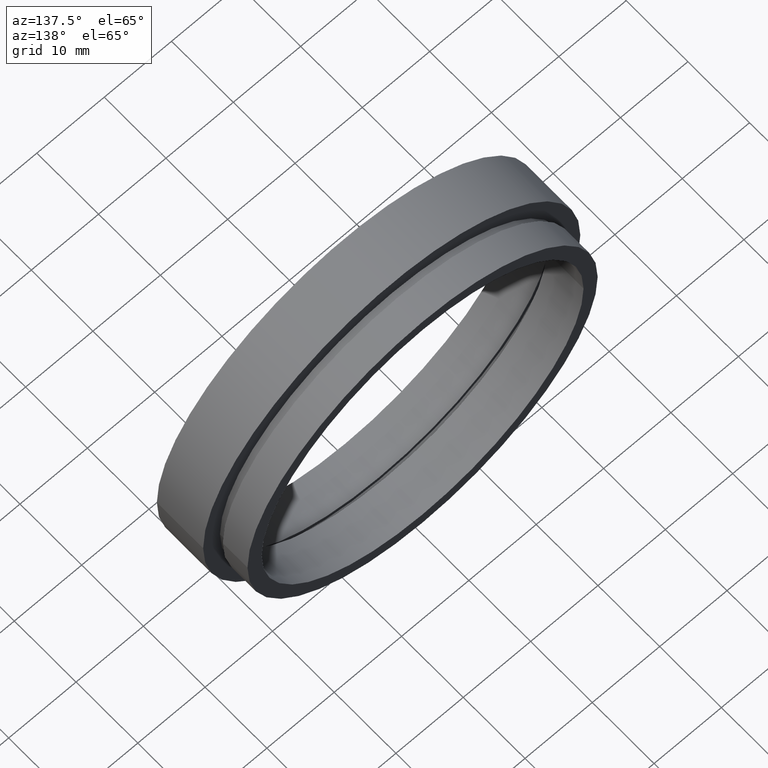
[diagram: clean part render]
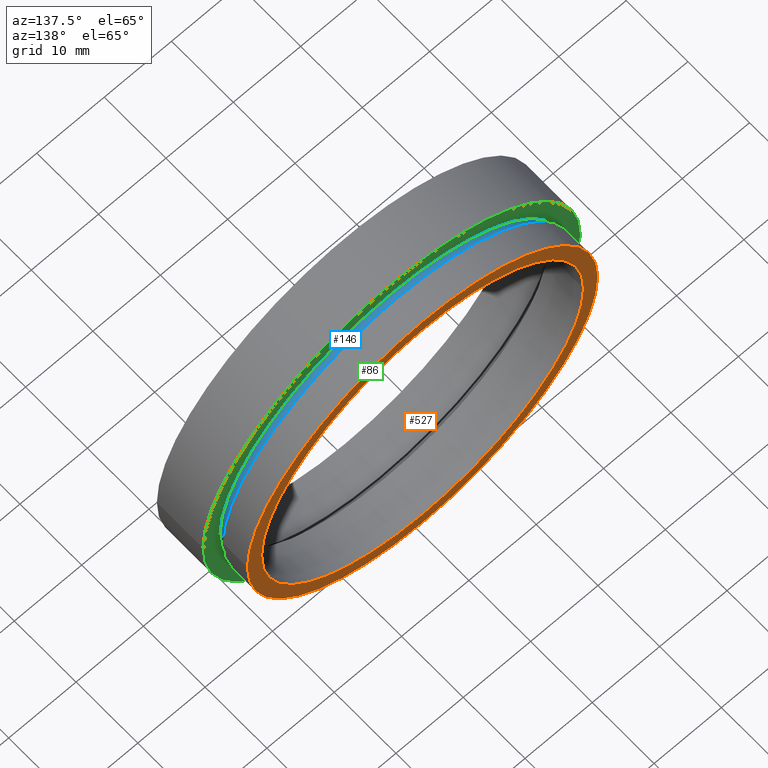
[diagram: same view with three faces highlighted in distinct colors, each labeled with its STEP entity id]
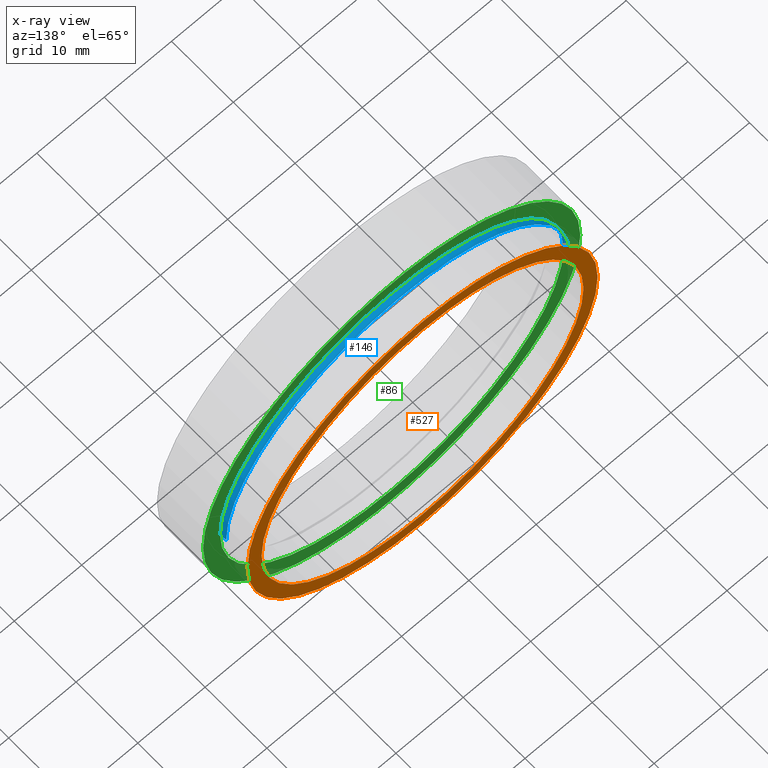
[diagram: x-ray of the same camera — body ghosted, the three highlighted faces saturated]
A machine part, auxiliary view with three faces highlighted in distinct colors.
The next image is the same camera in x-ray (body ghosted, the three faces saturated) — at least one of them is partly hidden behind the body in this view.
Their STEP definitions:

[orange] entity #527 — the highlighted planar face has unit normal (0, -1, 0).
#6 = VERTEX_POINT ( 'NONE', #528 ) ;
#14 = CARTESIAN_POINT ( 'NONE',  ( 5.371323195044473300E-016, 12.49999999999999600, 0.0000000000000000000 ) ) ;
#70 = DIRECTION ( 'NONE',  ( -1.224646799147351000E-016, 1.000000000000000000, -0.0000000000000000000 ) ) ;
#79 = CARTESIAN_POINT ( 'NONE',  ( 5.371323195044477300E-016, 12.49999999999999500, 0.0000000000000000000 ) ) ;
#99 = CARTESIAN_POINT ( 'NONE',  ( 23.89999999999999900, 12.50000000000000000, 2.926905849962173700E-015 ) ) ;
#123 = CARTESIAN_POINT ( 'NONE',  ( 5.371323195044477300E-016, 12.49999999999999500, 0.0000000000000000000 ) ) ;
#139 = AXIS2_PLACEMENT_3D ( 'NONE', #14, #582, #409 ) ;
#150 = CIRCLE ( 'NONE', #254, 26.00000000000000000 ) ;
#173 = DIRECTION ( 'NONE',  ( 1.000000000000000000, 1.224646799147351000E-016, 0.0000000000000000000 ) ) ;
#180 = DIRECTION ( 'NONE',  ( -1.000000000000000000, -1.451651444332056200E-016, 0.0000000000000000000 ) ) ;
#213 = CIRCLE ( 'NONE', #139, 23.89999999999999900 ) ;
#224 = ORIENTED_EDGE ( 'NONE', *, *, #575, .F. ) ;
#233 = CARTESIAN_POINT ( 'NONE',  ( 5.371323195044473300E-016, 12.49999999999999600, 0.0000000000000000000 ) ) ;
#236 = DIRECTION ( 'NONE',  ( -1.224646799147351000E-016, 1.000000000000000000, -0.0000000000000000000 ) ) ;
#241 = EDGE_LOOP ( 'NONE', ( #464, #401 ) ) ;
#254 = AXIS2_PLACEMENT_3D ( 'NONE', #123, #70, #467 ) ;
#263 = ORIENTED_EDGE ( 'NONE', *, *, #402, .F. ) ;
#299 = EDGE_CURVE ( 'NONE', #344, #579, #316, .T. ) ;
#311 = AXIS2_PLACEMENT_3D ( 'NONE', #233, #236, #180 ) ;
#316 = CIRCLE ( 'NONE', #516, 26.00000000000000000 ) ;
#328 = EDGE_LOOP ( 'NONE', ( #263, #224 ) ) ;
#331 = PLANE ( 'NONE',  #396 ) ;
#333 = CARTESIAN_POINT ( 'NONE',  ( 26.00000000000000400, 12.49999999999999800, 3.184081677783118600E-015 ) ) ;
#344 = VERTEX_POINT ( 'NONE', #521 ) ;
#396 = AXIS2_PLACEMENT_3D ( 'NONE', #593, #465, #173 ) ;
#398 = VERTEX_POINT ( 'NONE', #99 ) ;
#401 = ORIENTED_EDGE ( 'NONE', *, *, #520, .T. ) ;
#402 = EDGE_CURVE ( 'NONE', #6, #398, #213, .T. ) ;
#404 = FACE_BOUND ( 'NONE', #328, .T. ) ;
#409 = DIRECTION ( 'NONE',  ( -1.000000000000000000, -1.451651444332056200E-016, 0.0000000000000000000 ) ) ;
#452 = FACE_OUTER_BOUND ( 'NONE', #241, .T. ) ;
#464 = ORIENTED_EDGE ( 'NONE', *, *, #299, .T. ) ;
#465 = DIRECTION ( 'NONE',  ( 1.224646799147351000E-016, -1.000000000000000000, 0.0000000000000000000 ) ) ;
#467 = DIRECTION ( 'NONE',  ( -1.000000000000000000, -1.334402673828313100E-016, 0.0000000000000000000 ) ) ;
#475 = DIRECTION ( 'NONE',  ( -1.000000000000000000, -1.334402673828313100E-016, 0.0000000000000000000 ) ) ;
#508 = CIRCLE ( 'NONE', #311, 23.89999999999999900 ) ;
#516 = AXIS2_PLACEMENT_3D ( 'NONE', #79, #564, #475 ) ;
#520 = EDGE_CURVE ( 'NONE', #579, #344, #150, .T. ) ;
#521 = CARTESIAN_POINT ( 'NONE',  ( -26.00000000000000000, 12.49999999999999300, 0.0000000000000000000 ) ) ;
#527 = ADVANCED_FACE ( 'NONE', ( #404, #452 ), #331, .F. ) ;
#528 = CARTESIAN_POINT ( 'NONE',  ( -23.89999999999999900, 12.49999999999999300, 0.0000000000000000000 ) ) ;
#564 = DIRECTION ( 'NONE',  ( -1.224646799147351000E-016, 1.000000000000000000, -0.0000000000000000000 ) ) ;
#575 = EDGE_CURVE ( 'NONE', #398, #6, #508, .T. ) ;
#579 = VERTEX_POINT ( 'NONE', #333 ) ;
#582 = DIRECTION ( 'NONE',  ( -1.224646799147351000E-016, 1.000000000000000000, -0.0000000000000000000 ) ) ;
#593 = CARTESIAN_POINT ( 'NONE',  ( 23.89999999999999900, 12.50000000000000000, 0.0000000000000000000 ) ) ;

[blue] entity #146 — the highlighted cylindrical surface (partial cylindrical patch) has radius 25.5 mm, axis along (-0, 1, -0).
#27 = EDGE_LOOP ( 'NONE', ( #352, #171, #511, #294 ) ) ;
#55 = EDGE_CURVE ( 'NONE', #67, #240, #197, .T. ) ;
#65 = CIRCLE ( 'NONE', #244, 25.50000000000000400 ) ;
#67 = VERTEX_POINT ( 'NONE', #576 ) ;
#74 = DIRECTION ( 'NONE',  ( -1.224646799147351000E-016, 1.000000000000000000, -0.0000000000000000000 ) ) ;
#80 = LINE ( 'NONE', #498, #238 ) ;
#106 = VERTEX_POINT ( 'NONE', #495 ) ;
#119 = EDGE_CURVE ( 'NONE', #319, #106, #65, .T. ) ;
#146 = ADVANCED_FACE ( 'NONE', ( #351 ), #273, .T. ) ;
#147 = EDGE_CURVE ( 'NONE', #106, #240, #358, .T. ) ;
#159 = DIRECTION ( 'NONE',  ( -1.000000000000000000, -1.360567432138672100E-016, 0.0000000000000000000 ) ) ;
#168 = AXIS2_PLACEMENT_3D ( 'NONE', #505, #591, #496 ) ;
#171 = ORIENTED_EDGE ( 'NONE', *, *, #147, .T. ) ;
#197 = CIRCLE ( 'NONE', #210, 25.50000000000000400 ) ;
#202 = DIRECTION ( 'NONE',  ( -1.224646799147351000E-016, 1.000000000000000000, -0.0000000000000000000 ) ) ;
#210 = AXIS2_PLACEMENT_3D ( 'NONE', #536, #202, #159 ) ;
#238 = VECTOR ( 'NONE', #74, 1000.000000000000000 ) ;
#240 = VERTEX_POINT ( 'NONE', #608 ) ;
#244 = AXIS2_PLACEMENT_3D ( 'NONE', #327, #600, #330 ) ;
#273 = CYLINDRICAL_SURFACE ( 'NONE', #168, 25.50000000000000400 ) ;
#294 = ORIENTED_EDGE ( 'NONE', *, *, #493, .F. ) ;
#319 = VERTEX_POINT ( 'NONE', #567 ) ;
#320 = DIRECTION ( 'NONE',  ( -1.224646799147351000E-016, 1.000000000000000000, -0.0000000000000000000 ) ) ;
#327 = CARTESIAN_POINT ( 'NONE',  ( 1.149455719078123100E-015, 7.499999999999996400, 0.0000000000000000000 ) ) ;
#330 = DIRECTION ( 'NONE',  ( -1.000000000000000000, -1.360567432138672100E-016, 0.0000000000000000000 ) ) ;
#351 = FACE_OUTER_BOUND ( 'NONE', #27, .T. ) ;
#352 = ORIENTED_EDGE ( 'NONE', *, *, #119, .T. ) ;
#358 = LINE ( 'NONE', #555, #578 ) ;
#493 = EDGE_CURVE ( 'NONE', #319, #67, #80, .T. ) ;
#495 = CARTESIAN_POINT ( 'NONE',  ( 25.50000000000000400, 7.500000000000000000, 3.122849337825751000E-015 ) ) ;
#496 = DIRECTION ( 'NONE',  ( -1.000000000000000000, -1.360567432138672100E-016, 0.0000000000000000000 ) ) ;
#498 = CARTESIAN_POINT ( 'NONE',  ( -25.50000000000000400, 16.88601823708207300, 0.0000000000000000000 ) ) ;
#505 = CARTESIAN_POINT ( 'NONE',  ( 0.0000000000000000000, 16.88601823708207700, 0.0000000000000000000 ) ) ;
#511 = ORIENTED_EDGE ( 'NONE', *, *, #55, .F. ) ;
#536 = CARTESIAN_POINT ( 'NONE',  ( 1.026991039163387900E-015, 8.499999999999996400, 0.0000000000000000000 ) ) ;
#555 = CARTESIAN_POINT ( 'NONE',  ( 25.50000000000000400, 16.88601823708208000, 3.122849337825751000E-015 ) ) ;
#567 = CARTESIAN_POINT ( 'NONE',  ( -25.50000000000000400, 7.499999999999992900, 0.0000000000000000000 ) ) ;
#576 = CARTESIAN_POINT ( 'NONE',  ( -25.50000000000000400, 8.499999999999992900, 0.0000000000000000000 ) ) ;
#578 = VECTOR ( 'NONE', #320, 1000.000000000000000 ) ;
#591 = DIRECTION ( 'NONE',  ( -1.224646799147351000E-016, 1.000000000000000000, -0.0000000000000000000 ) ) ;
#600 = DIRECTION ( 'NONE',  ( -1.224646799147351000E-016, 1.000000000000000000, -0.0000000000000000000 ) ) ;
#608 = CARTESIAN_POINT ( 'NONE',  ( 25.50000000000000400, 8.500000000000000000, 3.122849337825751000E-015 ) ) ;

[green] entity #86 — the highlighted planar face has unit normal (0, -1, 0).
#7 = ORIENTED_EDGE ( 'NONE', *, *, #23, .T. ) ;
#11 = AXIS2_PLACEMENT_3D ( 'NONE', #438, #481, #450 ) ;
#23 = EDGE_CURVE ( 'NONE', #128, #143, #88, .T. ) ;
#29 = ORIENTED_EDGE ( 'NONE', *, *, #119, .F. ) ;
#36 = CARTESIAN_POINT ( 'NONE',  ( 1.149455719078123100E-015, 7.499999999999996400, 0.0000000000000000000 ) ) ;
#48 = AXIS2_PLACEMENT_3D ( 'NONE', #36, #281, #563 ) ;
#65 = CIRCLE ( 'NONE', #244, 25.50000000000000400 ) ;
#86 = ADVANCED_FACE ( 'NONE', ( #455, #379 ), #580, .F. ) ;
#88 = CIRCLE ( 'NONE', #614, 28.00000000000000000 ) ;
#106 = VERTEX_POINT ( 'NONE', #495 ) ;
#119 = EDGE_CURVE ( 'NONE', #319, #106, #65, .T. ) ;
#128 = VERTEX_POINT ( 'NONE', #166 ) ;
#143 = VERTEX_POINT ( 'NONE', #373 ) ;
#153 = ORIENTED_EDGE ( 'NONE', *, *, #598, .T. ) ;
#156 = DIRECTION ( 'NONE',  ( -1.224646799147351000E-016, 1.000000000000000000, -0.0000000000000000000 ) ) ;
#166 = CARTESIAN_POINT ( 'NONE',  ( -28.00000000000000000, 7.499999999999992900, 0.0000000000000000000 ) ) ;
#232 = ORIENTED_EDGE ( 'NONE', *, *, #314, .F. ) ;
#244 = AXIS2_PLACEMENT_3D ( 'NONE', #327, #600, #330 ) ;
#250 = CIRCLE ( 'NONE', #48, 28.00000000000000000 ) ;
#281 = DIRECTION ( 'NONE',  ( -1.224646799147351000E-016, 1.000000000000000000, -0.0000000000000000000 ) ) ;
#288 = AXIS2_PLACEMENT_3D ( 'NONE', #535, #540, #542 ) ;
#293 = EDGE_LOOP ( 'NONE', ( #7, #153 ) ) ;
#314 = EDGE_CURVE ( 'NONE', #106, #319, #569, .T. ) ;
#315 = CARTESIAN_POINT ( 'NONE',  ( 1.149455719078123100E-015, 7.499999999999996400, 0.0000000000000000000 ) ) ;
#319 = VERTEX_POINT ( 'NONE', #567 ) ;
#327 = CARTESIAN_POINT ( 'NONE',  ( 1.149455719078123100E-015, 7.499999999999996400, 0.0000000000000000000 ) ) ;
#330 = DIRECTION ( 'NONE',  ( -1.000000000000000000, -1.360567432138672100E-016, 0.0000000000000000000 ) ) ;
#373 = CARTESIAN_POINT ( 'NONE',  ( 28.00000000000000400, 7.500000000000000000, 3.429011037612589700E-015 ) ) ;
#379 = FACE_OUTER_BOUND ( 'NONE', #293, .T. ) ;
#403 = DIRECTION ( 'NONE',  ( -1.000000000000000000, -1.239088197126290800E-016, 0.0000000000000000000 ) ) ;
#438 = CARTESIAN_POINT ( 'NONE',  ( 1.149455719078123100E-015, 7.499999999999996400, 0.0000000000000000000 ) ) ;
#450 = DIRECTION ( 'NONE',  ( -1.000000000000000000, -1.360567432138672100E-016, 0.0000000000000000000 ) ) ;
#455 = FACE_BOUND ( 'NONE', #547, .T. ) ;
#481 = DIRECTION ( 'NONE',  ( -1.224646799147351000E-016, 1.000000000000000000, -0.0000000000000000000 ) ) ;
#495 = CARTESIAN_POINT ( 'NONE',  ( 25.50000000000000400, 7.500000000000000000, 3.122849337825751000E-015 ) ) ;
#535 = CARTESIAN_POINT ( 'NONE',  ( 25.50000000000000400, 7.500000000000000000, 0.0000000000000000000 ) ) ;
#540 = DIRECTION ( 'NONE',  ( 1.224646799147351000E-016, -1.000000000000000000, 0.0000000000000000000 ) ) ;
#542 = DIRECTION ( 'NONE',  ( 1.000000000000000000, 1.224646799147351000E-016, 0.0000000000000000000 ) ) ;
#547 = EDGE_LOOP ( 'NONE', ( #29, #232 ) ) ;
#563 = DIRECTION ( 'NONE',  ( -1.000000000000000000, -1.239088197126290800E-016, 0.0000000000000000000 ) ) ;
#567 = CARTESIAN_POINT ( 'NONE',  ( -25.50000000000000400, 7.499999999999992900, 0.0000000000000000000 ) ) ;
#569 = CIRCLE ( 'NONE', #11, 25.50000000000000400 ) ;
#580 = PLANE ( 'NONE',  #288 ) ;
#598 = EDGE_CURVE ( 'NONE', #143, #128, #250, .T. ) ;
#600 = DIRECTION ( 'NONE',  ( -1.224646799147351000E-016, 1.000000000000000000, -0.0000000000000000000 ) ) ;
#614 = AXIS2_PLACEMENT_3D ( 'NONE', #315, #156, #403 ) ;